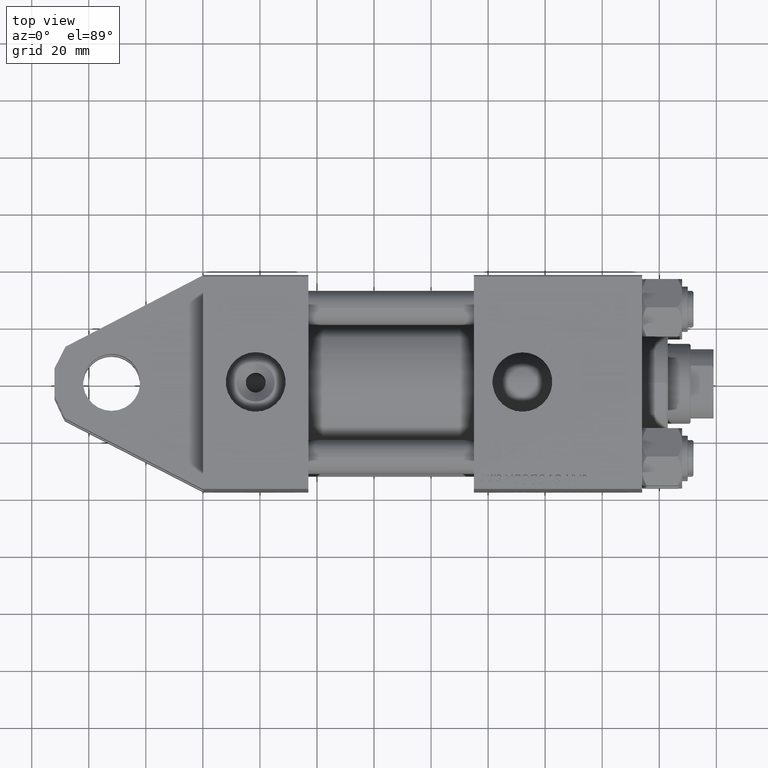
[diagram: clean part render]
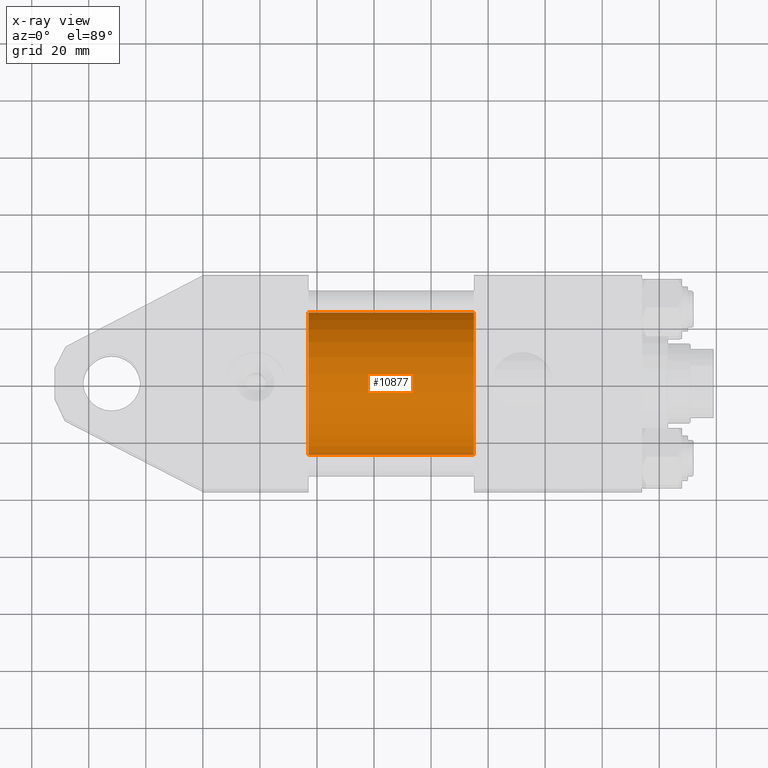
[diagram: x-ray — body ghosted, one internal face saturated and labeled with its STEP entity id]
A machine part, top view, then the same camera in x-ray: the body is ghosted and one INTERNAL B-rep face — a face not visible from any outside direction — is saturated and labeled: STEP entity #10877.
In plain terms, the highlighted cylindrical surface (partial cylindrical patch) has radius 25 mm, axis along (-1, -0, 0).
Its self-contained STEP definition (entity closure, byte-faithful):
#123 = FACE_OUTER_BOUND ( 'NONE', #13049, .T. ) ;
#1631 = DIRECTION ( 'NONE',  ( -1.000000000000000000, -0.000000000000000000, -0.000000000000000000 ) ) ;
#2926 = ORIENTED_EDGE ( 'NONE', *, *, #15104, .T. ) ;
#3235 = VECTOR ( 'NONE', #1631, 1000.000000000000000 ) ;
#4492 = CARTESIAN_POINT ( 'NONE',  ( 95.00000000000000000, -3.469446951953614189E-15, 0.000000000000000000 ) ) ;
#4827 = VECTOR ( 'NONE', #50410, 1000.000000000000000 ) ;
#6915 = VERTEX_POINT ( 'NONE', #45740 ) ;
#7551 = DIRECTION ( 'NONE',  ( 0.000000000000000000, 0.000000000000000000, -1.000000000000000000 ) ) ;
#10877 = ADVANCED_FACE ( 'NONE', ( #123 ), #28212, .F. ) ;
#11190 = DIRECTION ( 'NONE',  ( 1.000000000000000000, 0.000000000000000000, 0.000000000000000000 ) ) ;
#11344 = EDGE_CURVE ( 'NONE', #11930, #21555, #22128, .T. ) ;
#11613 = CIRCLE ( 'NONE', #39003, 25.00000000000000000 ) ;
#11930 = VERTEX_POINT ( 'NONE', #24249 ) ;
#12072 = CARTESIAN_POINT ( 'NONE',  ( 95.00000000000000000, -3.469446951953614189E-15, 0.000000000000000000 ) ) ;
#12605 = DIRECTION ( 'NONE',  ( 0.000000000000000000, 0.000000000000000000, 1.000000000000000000 ) ) ;
#13049 = EDGE_LOOP ( 'NONE', ( #2926, #38376, #44752, #25418 ) ) ;
#13195 = CARTESIAN_POINT ( 'NONE',  ( 37.00000000000000000, -4.078299540852317872E-16, -25.00000000000000000 ) ) ;
#13934 = AXIS2_PLACEMENT_3D ( 'NONE', #12072, #35749, #12605 ) ;
#15104 = EDGE_CURVE ( 'NONE', #11930, #6915, #11613, .T. ) ;
#18001 = LINE ( 'NONE', #49676, #3235 ) ;
#21555 = VERTEX_POINT ( 'NONE', #42800 ) ;
#22128 = LINE ( 'NONE', #22883, #4827 ) ;
#22883 = CARTESIAN_POINT ( 'NONE',  ( 95.00000000000000000, -3.469446951953614189E-15, 25.00000000000000000 ) ) ;
#23352 = VERTEX_POINT ( 'NONE', #13195 ) ;
#24249 = CARTESIAN_POINT ( 'NONE',  ( 95.00000000000000000, -3.469446951953614189E-15, 25.00000000000000000 ) ) ;
#25418 = ORIENTED_EDGE ( 'NONE', *, *, #11344, .F. ) ;
#28212 = CYLINDRICAL_SURFACE ( 'NONE', #13934, 25.00000000000000000 ) ;
#30288 = AXIS2_PLACEMENT_3D ( 'NONE', #46527, #11190, #7551 ) ;
#31211 = CIRCLE ( 'NONE', #30288, 25.00000000000000000 ) ;
#32319 = DIRECTION ( 'NONE',  ( 0.000000000000000000, 0.000000000000000000, -1.000000000000000000 ) ) ;
#35749 = DIRECTION ( 'NONE',  ( -1.000000000000000000, -0.000000000000000000, -0.000000000000000000 ) ) ;
#38188 = EDGE_CURVE ( 'NONE', #21555, #23352, #31211, .T. ) ;
#38376 = ORIENTED_EDGE ( 'NONE', *, *, #44310, .T. ) ;
#39003 = AXIS2_PLACEMENT_3D ( 'NONE', #4492, #45012, #32319 ) ;
#42800 = CARTESIAN_POINT ( 'NONE',  ( 37.00000000000000000, -3.469446951953614189E-15, 25.00000000000000000 ) ) ;
#44310 = EDGE_CURVE ( 'NONE', #6915, #23352, #18001, .T. ) ;
#44752 = ORIENTED_EDGE ( 'NONE', *, *, #38188, .F. ) ;
#45012 = DIRECTION ( 'NONE',  ( 1.000000000000000000, 0.000000000000000000, 0.000000000000000000 ) ) ;
#45740 = CARTESIAN_POINT ( 'NONE',  ( 95.00000000000000000, -4.078299540852317872E-16, -25.00000000000000000 ) ) ;
#46527 = CARTESIAN_POINT ( 'NONE',  ( 37.00000000000000000, -3.469446951953614189E-15, 0.000000000000000000 ) ) ;
#49676 = CARTESIAN_POINT ( 'NONE',  ( 95.00000000000000000, -4.078299540852317872E-16, -25.00000000000000000 ) ) ;
#50410 = DIRECTION ( 'NONE',  ( -1.000000000000000000, -0.000000000000000000, -0.000000000000000000 ) ) ;